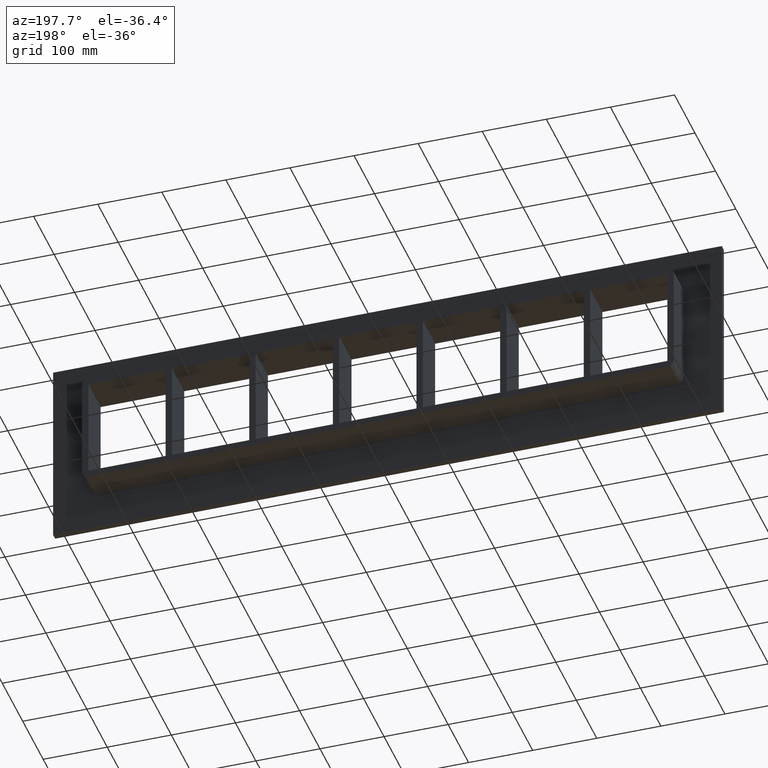
[diagram: clean part render]
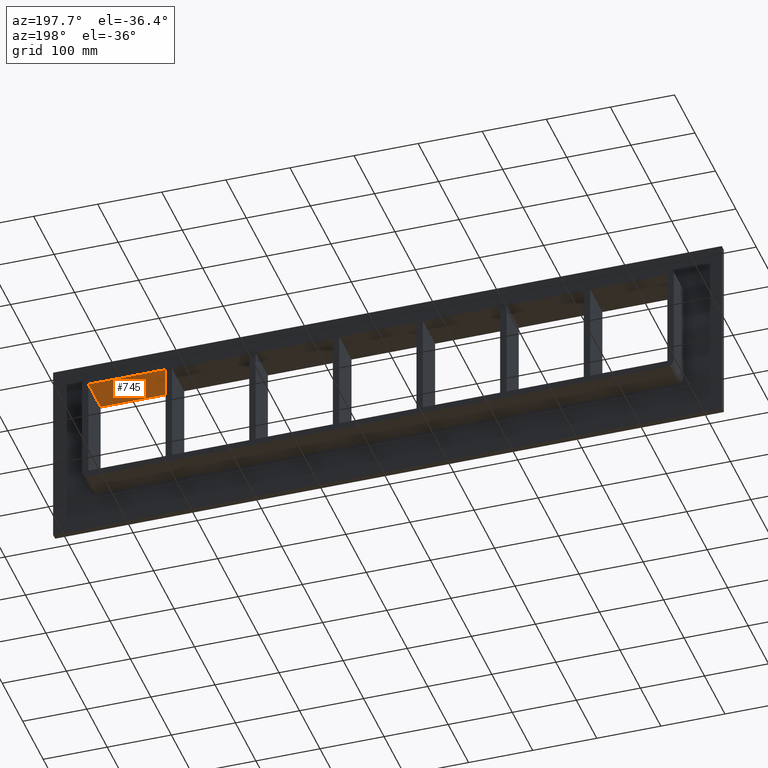
[diagram: same view with one face highlighted and labeled with its STEP entity id]
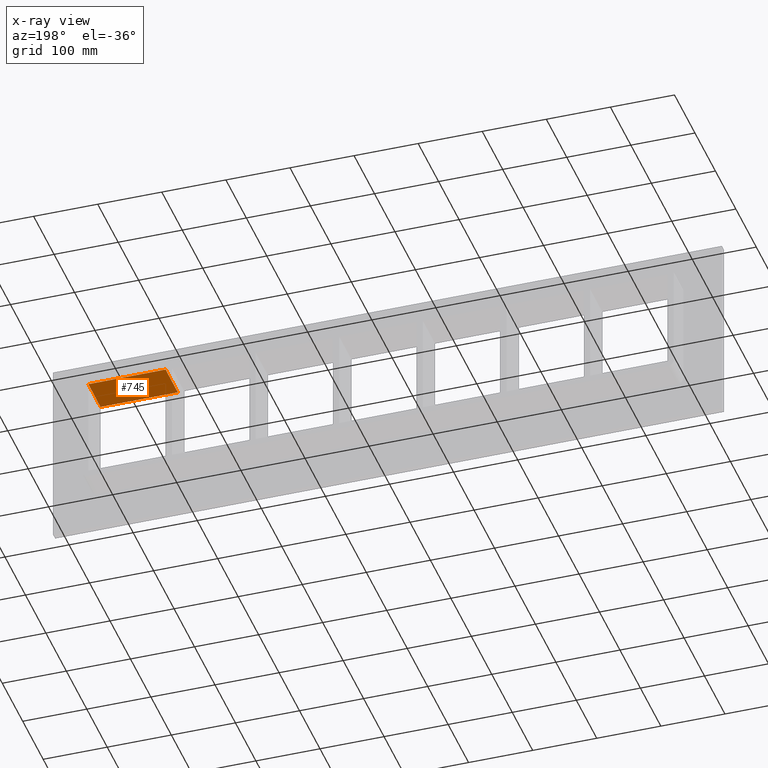
[diagram: x-ray of the same camera — body ghosted, the highlighted face saturated]
A machine part, auxiliary view. The second image highlights one B-rep face of the part: STEP entity #745.
The next image is the same camera in x-ray: the body ghosted, the highlighted face saturated — about 0% of this face is hidden behind the body in this view.
In plain terms, the highlighted planar face has unit normal (0, 0, 1).
Its self-contained STEP definition (entity closure, byte-faithful):
#113=CARTESIAN_POINT('',(331.25,-3.0,79.750000000000014));
#114=VERTEX_POINT('',#113);
#131=CARTESIAN_POINT('',(331.25,57.0,79.750000000000014));
#132=VERTEX_POINT('',#131);
#139=CARTESIAN_POINT('',(331.25,-3.0,79.750000000000014));
#140=DIRECTION('',(0.0,1.0,0.0));
#141=VECTOR('',#140,60.000000000000007);
#142=LINE('',#139,#141);
#143=EDGE_CURVE('',#114,#132,#142,.T.);
#715=CARTESIAN_POINT('',(-451.75000000000006,0.0,79.750000000000014));
#716=DIRECTION('',(0.0,0.0,1.0));
#717=DIRECTION('',(1.0,0.0,0.0));
#718=AXIS2_PLACEMENT_3D('',#715,#716,#717);
#719=PLANE('',#718);
#720=ORIENTED_EDGE('',*,*,#143,.T.);
#721=CARTESIAN_POINT('',(451.75000000000011,57.0,79.750000000000014));
#722=VERTEX_POINT('',#721);
#723=CARTESIAN_POINT('',(451.75000000000023,57.0,79.750000000000014));
#724=DIRECTION('',(-1.0,0.0,0.0));
#725=VECTOR('',#724,120.50000000000023);
#726=LINE('',#723,#725);
#727=EDGE_CURVE('',#722,#132,#726,.T.);
#728=ORIENTED_EDGE('',*,*,#727,.F.);
#729=CARTESIAN_POINT('',(451.75000000000011,-3.0,79.750000000000014));
#730=VERTEX_POINT('',#729);
#731=CARTESIAN_POINT('',(451.75000000000011,-3.0,79.750000000000014));
#732=DIRECTION('',(0.0,1.0,0.0));
#733=VECTOR('',#732,60.0);
#734=LINE('',#731,#733);
#735=EDGE_CURVE('',#730,#722,#734,.T.);
#736=ORIENTED_EDGE('',*,*,#735,.F.);
#737=CARTESIAN_POINT('',(331.25,-3.0,79.750000000000014));
#738=DIRECTION('',(1.0,0.0,0.0));
#739=VECTOR('',#738,120.50000000000023);
#740=LINE('',#737,#739);
#741=EDGE_CURVE('',#114,#730,#740,.T.);
#742=ORIENTED_EDGE('',*,*,#741,.F.);
#743=EDGE_LOOP('',(#720,#728,#736,#742));
#744=FACE_OUTER_BOUND('',#743,.T.);
#745=ADVANCED_FACE('',(#744),#719,.F.);